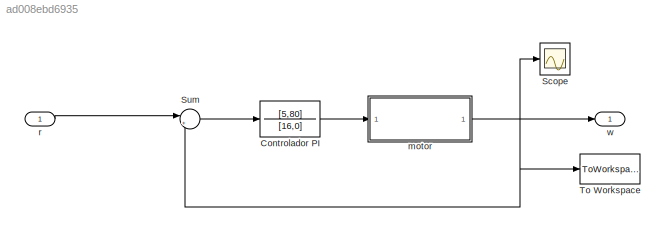
MODEL slx_ad008ebd6935
KIND model
CONFIG AbsTol = auto
CONFIG EnableMultiTasking = off
CONFIG FixedStep = auto
CONFIG MaxStep = auto
CONFIG MinStep = auto
CONFIG RelTol = 1e-3
CONFIG SampleTimeConstraint = Unconstrained
CONFIG Solver = VariableStepAuto
CONFIG SolverName = VariableStepAuto
CONFIG StartTime = 0.0
CONFIG StopTime = 10.0
BLOCK [TransferFcn] Controlador PI
  Denominator = [16,0]
  Numerator = [5,80]
BLOCK [Scope] Scope
  NumInputPorts = 1
  Ports = [1]
  ScopeSpecificationString = Simulink.scopes.TimeScopeBlockCfg('CurrentConfiguration', extmgr.ConfigurationSet(extmgr.Configuration('Core','General UI',true),extmgr.Configuration('Core','Source UI',true),extmgr.Configuration('Sources','WiredSimulink',true),extmgr.Configuration('Visuals','Time Domain',true,'SerializedDisplays',{struct('MinYLimReal','-54.96123','MaxYLimReal','494.6511','YLabelReal','','MinYLimMag','0.00000','Ma...<+1384ch>
BLOCK [Sum] Sum
  IconShape = round
  InputSameDT = off
  Inputs = |+-
  OutDataTypeStr = Inherit: Inherit via internal rule
  Ports = [2, 1]
  SaturateOnIntegerOverflow = off
BLOCK [ToWorkspace] To Workspace
  FixptAsFi = on
  MaxDataPoints = inf
  Ports = [1]
  SampleTime = -1
  Save2DSignal = 3-D array (concatenate along third dimension)
  SaveFormat = Timeseries
  VariableName = w
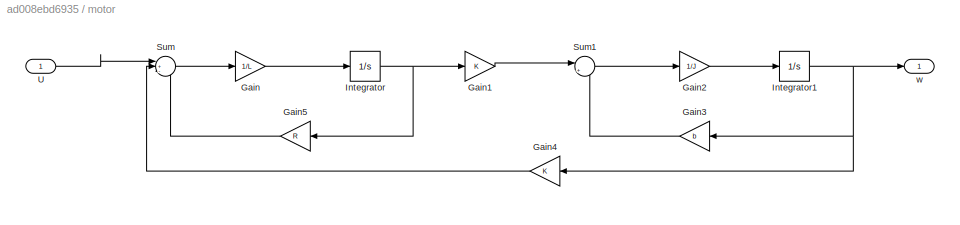
BLOCK [SubSystem] motor 
  Ports = [1, 1]
  RequestExecContextInheritance = off
  Variant = off
BLOCK [Gain] motor /Gain
  Gain = 1/L
  OutDataTypeStr = Inherit: Inherit via internal rule
  ParamDataTypeStr = Inherit: Inherit via internal rule
  SaturateOnIntegerOverflow = off
BLOCK [Gain] motor /Gain1
  Gain = K
  OutDataTypeStr = Inherit: Inherit via internal rule
  ParamDataTypeStr = Inherit: Inherit via internal rule
  SaturateOnIntegerOverflow = off
BLOCK [Gain] motor /Gain2
  Gain = 1/J
  OutDataTypeStr = Inherit: Inherit via internal rule
  ParamDataTypeStr = Inherit: Inherit via internal rule
  SaturateOnIntegerOverflow = off
BLOCK [Gain] motor /Gain3
  Gain = b
  OutDataTypeStr = Inherit: Inherit via internal rule
  ParamDataTypeStr = Inherit: Inherit via internal rule
  SaturateOnIntegerOverflow = off
BLOCK [Gain] motor /Gain4
  Gain = K
  OutDataTypeStr = Inherit: Inherit via internal rule
  ParamDataTypeStr = Inherit: Inherit via internal rule
  SaturateOnIntegerOverflow = off
BLOCK [Gain] motor /Gain5
  Gain = R
  OutDataTypeStr = Inherit: Inherit via internal rule
  ParamDataTypeStr = Inherit: Inherit via internal rule
  SaturateOnIntegerOverflow = off
BLOCK [Integrator] motor /Integrator
  Ports = [1, 1]
BLOCK [Integrator] motor /Integrator1
  Ports = [1, 1]
BLOCK [Sum] motor /Sum
  IconShape = round
  InputSameDT = off
  Inputs = |+--
  OutDataTypeStr = Inherit: Inherit via internal rule
  Ports = [3, 1]
  SaturateOnIntegerOverflow = off
BLOCK [Sum] motor /Sum1
  IconShape = round
  InputSameDT = off
  Inputs = |+-
  OutDataTypeStr = Inherit: Inherit via internal rule
  Ports = [2, 1]
  SaturateOnIntegerOverflow = off
BLOCK [Inport] motor /U
  IconDisplay = Port number
BLOCK [Outport] motor /w
  IconDisplay = Port number
BLOCK [Inport] r
  IconDisplay = Port number
BLOCK [Outport] w
  IconDisplay = Port number
LINE Controlador PI:1 -> motor :1
LINE Sum:1 -> Controlador PI:1
LINE motor /Gain1:1 -> motor /Sum1:1
LINE motor /Gain2:1 -> motor /Integrator1:1
LINE motor /Gain3:1 -> motor /Sum1:2
LINE motor /Gain4:1 -> motor /Sum:2
LINE motor /Gain5:1 -> motor /Sum:3
LINE motor /Gain:1 -> motor /Integrator:1
NET motor /Integrator1:1 -> motor /Gain3:1, motor /Gain4:1, motor /w:1
NET motor /Integrator:1 -> motor /Gain1:1, motor /Gain5:1
LINE motor /Sum1:1 -> motor /Gain2:1
LINE motor /Sum:1 -> motor /Gain:1
LINE motor /U:1 -> motor /Sum:1
NET motor :1 -> Scope:1, Sum:2, To Workspace:1, w:1
LINE r:1 -> Sum:1
note: NET lines group one-source signal fan-out (src -> all destinations, sorted); 1:1 wires keep LINE
